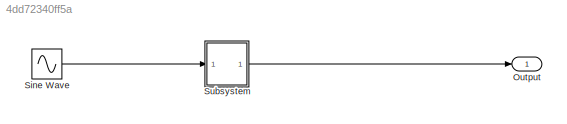
MODEL slx_4dd72340ff5a
KIND model
CONFIG AbsTol = auto
CONFIG EnableMultiTasking = off
CONFIG FixedStep = auto
CONFIG MaxStep = auto
CONFIG MinStep = auto
CONFIG RelTol = 1e-3
CONFIG SampleTimeConstraint = Unconstrained
CONFIG SolverName = VariableStepAuto
CONFIG StartTime = 0.0
CONFIG StopTime = 10.0
BLOCK [Outport] Output
BLOCK [Sin] Sine Wave
  SampleTime = 0
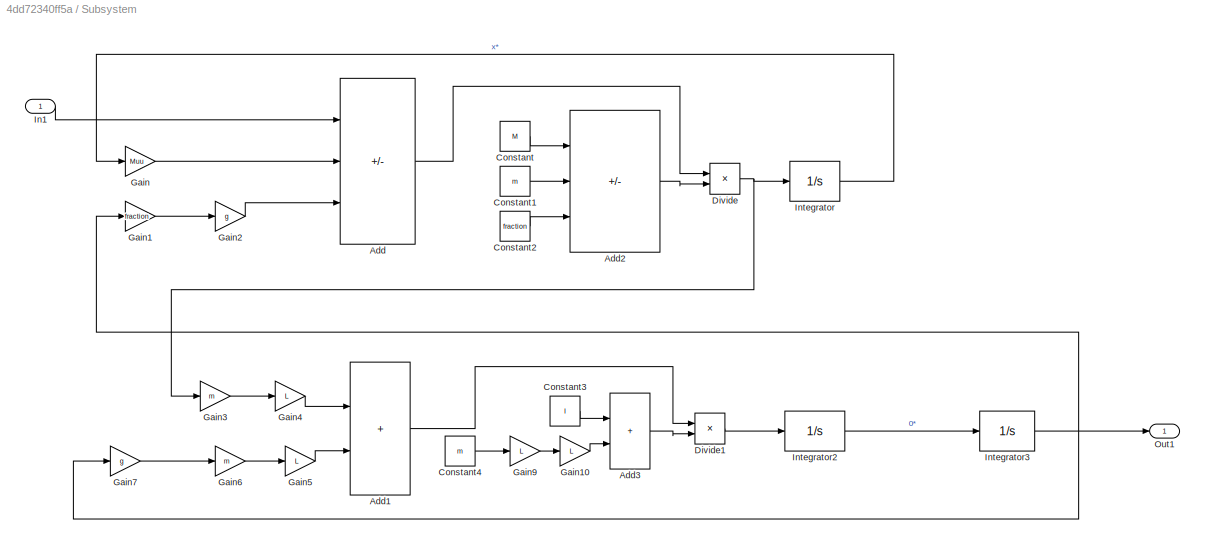
BLOCK [SubSystem] Subsystem
BLOCK [Sum] Subsystem/Add
  IconShape = rectangular
  Inputs = +-+
BLOCK [Sum] Subsystem/Add1
  IconShape = rectangular
BLOCK [Sum] Subsystem/Add2
  IconShape = rectangular
  Inputs = ++-
BLOCK [Sum] Subsystem/Add3
  IconShape = rectangular
BLOCK [Constant] Subsystem/Constant
  Value = M
BLOCK [Constant] Subsystem/Constant1
  Value = m
BLOCK [Constant] Subsystem/Constant2
  Value = fraction
BLOCK [Constant] Subsystem/Constant3
  Value = I
BLOCK [Constant] Subsystem/Constant4
  Value = m
BLOCK [Product] Subsystem/Divide
  Inputs = */
BLOCK [Product] Subsystem/Divide1
  Inputs = */
BLOCK [Gain] Subsystem/Gain
  Gain = Muu
BLOCK [Gain] Subsystem/Gain1
  Gain = fraction
BLOCK [Gain] Subsystem/Gain10
  Gain = L
BLOCK [Gain] Subsystem/Gain2
  Gain = g
BLOCK [Gain] Subsystem/Gain3
  Gain = m
BLOCK [Gain] Subsystem/Gain4
  Gain = L
BLOCK [Gain] Subsystem/Gain5
  Gain = L
BLOCK [Gain] Subsystem/Gain6
  Gain = m
BLOCK [Gain] Subsystem/Gain7
  Gain = g
BLOCK [Gain] Subsystem/Gain9
  Gain = L
BLOCK [Inport] Subsystem/In1
BLOCK [Integrator] Subsystem/Integrator
BLOCK [Integrator] Subsystem/Integrator2
BLOCK [Integrator] Subsystem/Integrator3
BLOCK [Outport] Subsystem/Out1
LINE Sine Wave:1 -> Subsystem:1
LINE Subsystem/Add1:1 -> Subsystem/Divide1:1
LINE Subsystem/Add2:1 -> Subsystem/Divide:2
LINE Subsystem/Add3:1 -> Subsystem/Divide1:2
LINE Subsystem/Add:1 -> Subsystem/Divide:1
LINE Subsystem/Constant1:1 -> Subsystem/Add2:2
LINE Subsystem/Constant2:1 -> Subsystem/Add2:3
LINE Subsystem/Constant3:1 -> Subsystem/Add3:1
LINE Subsystem/Constant4:1 -> Subsystem/Gain9:1
LINE Subsystem/Constant:1 -> Subsystem/Add2:1
LINE Subsystem/Divide1:1 -> Subsystem/Integrator2:1
NET Subsystem/Divide:1 -> Subsystem/Gain3:1, Subsystem/Integrator:1
LINE Subsystem/Gain10:1 -> Subsystem/Add3:2
LINE Subsystem/Gain1:1 -> Subsystem/Gain2:1
LINE Subsystem/Gain2:1 -> Subsystem/Add:3
LINE Subsystem/Gain3:1 -> Subsystem/Gain4:1
LINE Subsystem/Gain4:1 -> Subsystem/Add1:1
LINE Subsystem/Gain5:1 -> Subsystem/Add1:2
LINE Subsystem/Gain6:1 -> Subsystem/Gain5:1
LINE Subsystem/Gain7:1 -> Subsystem/Gain6:1
LINE Subsystem/Gain9:1 -> Subsystem/Gain10:1
LINE Subsystem/Gain:1 -> Subsystem/Add:2
LINE Subsystem/In1:1 -> Subsystem/Add:1
LINE Subsystem/Integrator2:1 -> Subsystem/Integrator3:1
NET Subsystem/Integrator3:1 -> Subsystem/Gain1:1, Subsystem/Gain7:1, Subsystem/Out1:1
LINE Subsystem/Integrator:1 -> Subsystem/Gain:1
LINE Subsystem:1 -> Output:1
note: NET lines group one-source signal fan-out (src -> all destinations, sorted); 1:1 wires keep LINE
